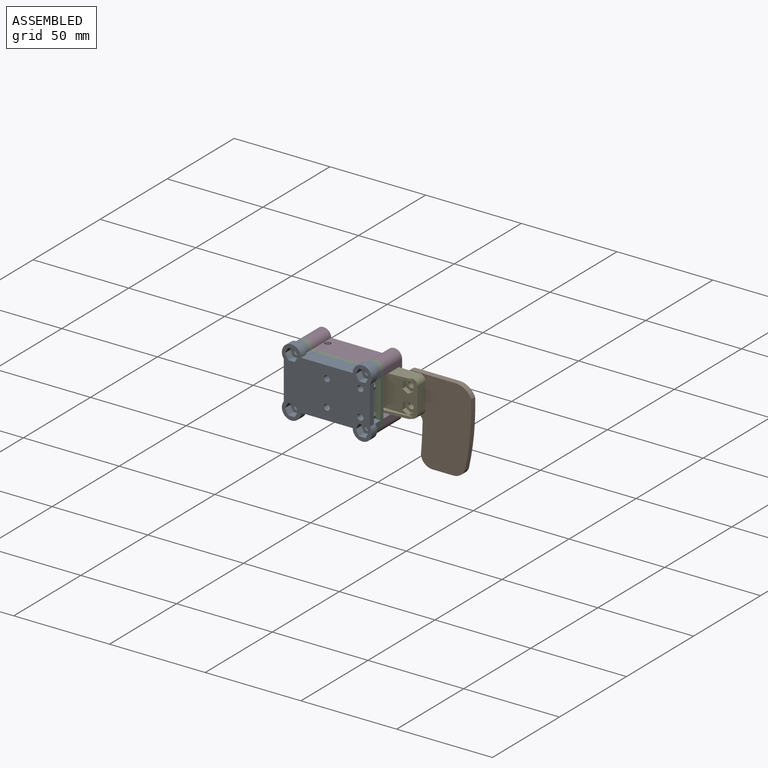
[diagram: assembled view]
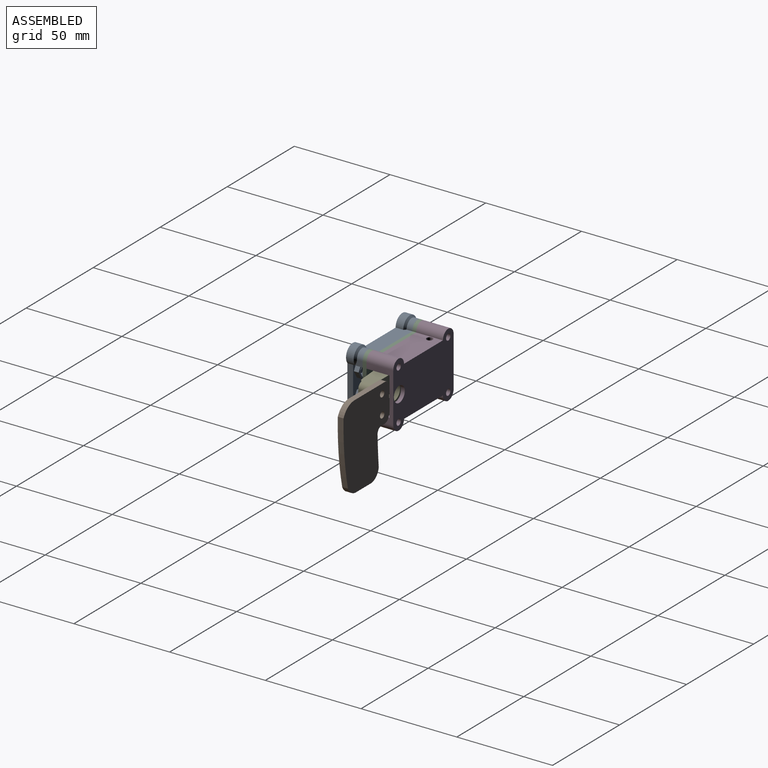
[diagram: assembled view, second angle]
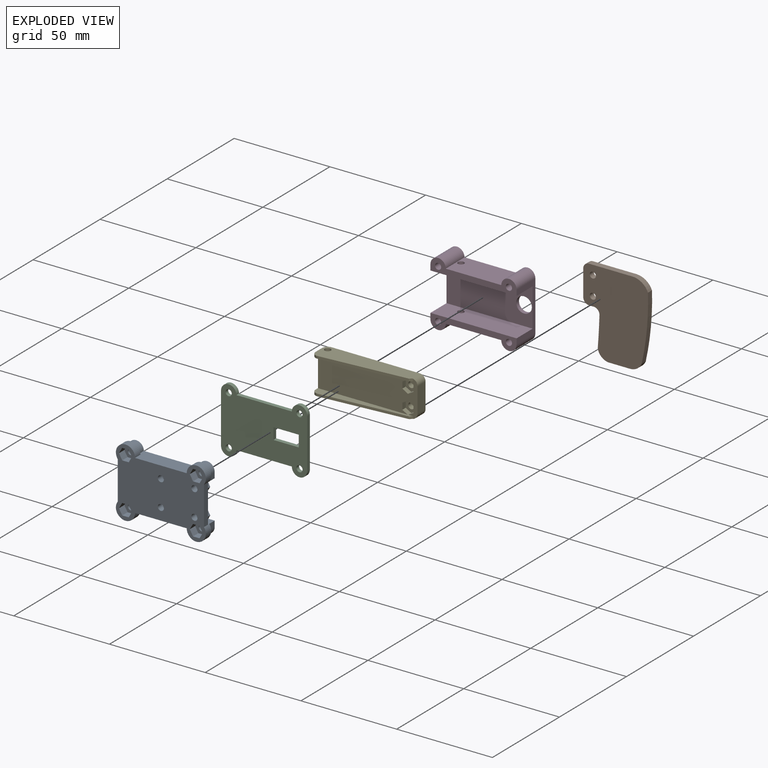
[diagram: exploded view]
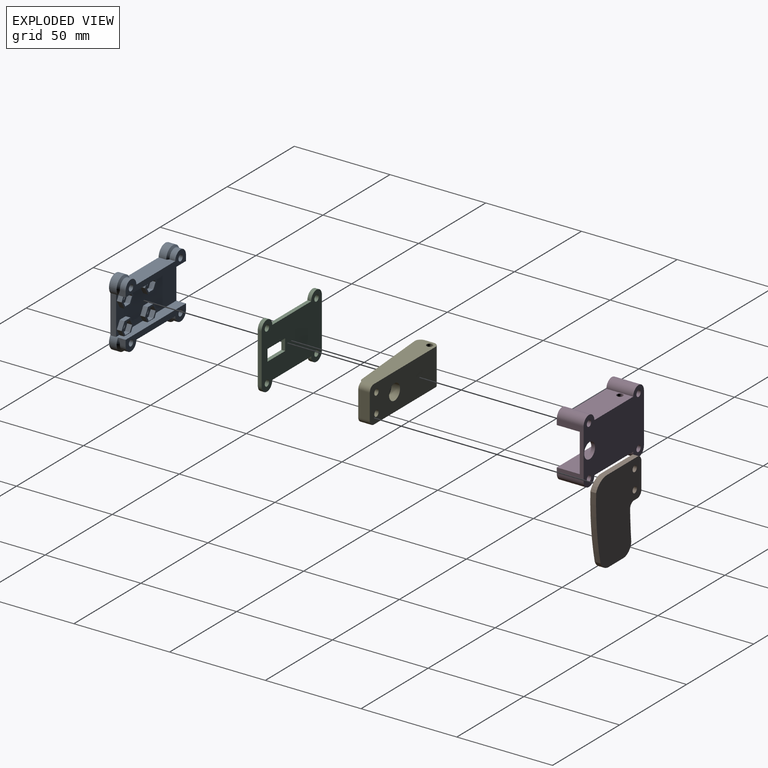
[diagram: exploded view, second angle]
ASSEMBLY  parts=5 mates=4
PART A: 114 faces, bbox 47x8x36 mm
  f0: cylinder r=1.6mm len=4mm, axis (0,-1,0), area 40.3mm2, adj f23,f113
  f1: cylinder r=1.6mm len=4mm, axis (0,-1,0), area 40.3mm2, adj f23,f106
  f2: cylinder r=1.6mm len=4mm, axis (0,-1,0), area 40.3mm2, adj f29,f99
  f3: cylinder r=1.6mm len=4mm, axis (0,-1,0), area 40.3mm2, adj f29,f92
  f4: plane 45x20.01mm, normal (0,1,0), area 706.6mm2, adj f7,f11,f18,f24,f35,f36,f37,f38
  f5: plane 28.99x8mm, normal (0,0,-1), area 223mm2, adj f6,f12,f13,f14,f17,f20,f21,f23
  f6: cylinder r=5mm len=10mm, axis (0,-1,0), area 75.7mm2, adj f5,f7,f13,f14,f18
  f7: plane 20.01x3mm, normal (1,0,0), area 60mm2, adj f4,f6,f8,f13
  f8: cylinder r=5mm len=10mm, axis (0,-1,0), area 75.7mm2, adj f7,f9,f13,f15,f24
  f9: plane 28.99x8mm, normal (0,0,1), area 223mm2, adj f8,f10,f13,f15,f16,f25,f28,f29
  f10: cylinder r=5mm len=10mm, axis (0,-1,0), area 75.7mm2, adj f9,f11,f13,f16,f24
  f11: plane 20.01x3mm, normal (-1,0,0), area 60mm2, adj f4,f10,f12,f13
  f12: cylinder r=5mm len=10mm, axis (0,-1,0), area 75.7mm2, adj f5,f11,f13,f17,f18
  f13: plane 47x36mm, normal (0,-1,0), area 1182.9mm2, adj f5,f6,f7,f8,f9,f10,f11,f12
  f14: cone r=5mm half-angle=45deg, axis (0,-1,0), area 22.8mm2, adj f5,f6,f21,f22
  f15: cone r=5mm half-angle=45deg, axis (0,-1,0), area 22.8mm2, adj f8,f9,f27,f28
  f16: cone r=5mm half-angle=45deg, axis (0,-1,0), area 22.8mm2, adj f9,f10,f25,f26
  f17: cone r=5mm half-angle=45deg, axis (0,-1,0), area 22.8mm2, adj f5,f12,f19,f20
  f18: plane 45x5mm, normal (0,0,1), area 199.2mm2, adj f4,f6,f12,f19,f22,f23,f38,f39
  f19: plane 4x3mm, normal (-1,0,0), area 10mm2, adj f17,f18,f20,f23
  f20: cylinder r=4mm len=8mm, axis (0,-1,0), area 37.7mm2, adj f5,f17,f19,f23
  f21: cylinder r=4mm len=8mm, axis (0,-1,0), area 37.7mm2, adj f5,f14,f22,f23
  f22: plane 4x3mm, normal (1,0,0), area 10mm2, adj f14,f18,f21,f23
  f23: plane 45x7mm, normal (0,1,0), area 169mm2, adj f0,f1,f5,f18,f19,f20,f21,f22
  f24: plane 45x5mm, normal (0,0,-1), area 199.2mm2, adj f4,f8,f10,f26,f27,f29,f57,f58
  f25: cylinder r=4mm len=8mm, axis (0,-1,0), area 37.7mm2, adj f9,f16,f26,f29
  f26: plane 4x3mm, normal (-1,0,0), area 10mm2, adj f16,f24,f25,f29
  f27: plane 4x3mm, normal (1,0,0), area 10mm2, adj f15,f24,f28,f29
  f28: cylinder r=4mm len=8mm, axis (0,-1,0), area 37.7mm2, adj f9,f15,f27,f29
  f29: plane 45x7mm, normal (0,1,0), area 169mm2, adj f2,f3,f9,f24,f25,f26,f27,f28
  f30: plane 2.94x2.5mm, normal (0.87,0,-0.5), area 8.5mm2, adj f31,f40,f41,f42
  f31: plane 3.4x2.5mm, normal (0,0,-1), area 8.5mm2, adj f30,f32,f41,f42
  f32: plane 2.95x2.5mm, normal (-0.87,0,-0.5), area 8.5mm2, adj f31,f33,f41,f42
  f33: plane 2.94x2.5mm, normal (-0.87,0,0.5), area 8.5mm2, adj f32,f34,f41,f42
  f34: plane 3.4x2.5mm, normal (0,0,1), area 8.5mm2, adj f33,f40,f41,f42
  f35: plane 3.87x2.5mm, normal (0.87,0,0.5), area 11.1mm2, adj f4,f36,f39,f41
  f36: plane 4.46x2.5mm, normal (0,0,1), area 11.1mm2, adj f4,f35,f37,f41
  f37: plane 3.85x2.5mm, normal (-0.86,0,0.5), area 11.1mm2, adj f4,f36,f38,f41
  f38: plane 3.24x2.5mm, normal (-0.87,0,-0.5), area 9.3mm2, adj f4,f18,f37,f41
  f39: plane 3.2x2.5mm, normal (0.86,0,-0.5), area 9.3mm2, adj f4,f18,f35,f41
  f40: plane 2.95x2.5mm, normal (0.87,0,0.5), area 8.5mm2, adj f30,f34,f41,f42
  f41: plane 8.92x7.09mm, normal (0,1,0), area 18.5mm2, adj f18,f30,f31,f32,f33,f34,f35,f36
  f42: plane 6.8x5.89mm, normal (0,1,0), area 22mm2, adj f30,f31,f32,f33,f34,f40,f85
  f43: plane 2.94x2.5mm, normal (0.87,0,-0.5), area 8.5mm2, adj f44,f53,f54,f55
  f44: plane 3.4x2.5mm, normal (0,0,-1), area 8.5mm2, adj f43,f45,f54,f55
  f45: plane 2.94x2.5mm, normal (-0.87,0,-0.5), area 8.5mm2, adj f44,f46,f54,f55
  f46: plane 2.94x2.5mm, normal (-0.87,0,0.5), area 8.5mm2, adj f45,f47,f54,f55
  f47: plane 3.4x2.5mm, normal (0,0,1), area 8.5mm2, adj f46,f53,f54,f55
  f48: plane 3.25x2.5mm, normal (0.87,0,-0.5), area 9.4mm2, adj f4,f18,f49,f54
  f49: plane 3.84x2.5mm, normal (0.86,0,0.5), area 11.1mm2, adj f4,f48,f50,f54
  f50: plane 4.44x2.5mm, normal (0,0,1), area 11.1mm2, adj f4,f49,f51,f54
  f51: plane 3.85x2.5mm, normal (-0.87,0,0.5), area 11.1mm2, adj f4,f50,f52,f54
  f52: plane 3.23x2.5mm, normal (-0.86,0,-0.5), area 9.3mm2, adj f4,f18,f51,f54
  f53: plane 2.94x2.5mm, normal (0.87,0,0.5), area 8.5mm2, adj f43,f47,f54,f55
  f54: plane 8.87x7.09mm, normal (0,1,0), area 18.2mm2, adj f18,f43,f44,f45,f46,f47,f48,f49
  f55: plane 6.8x5.89mm, normal (0,1,0), area 22mm2, adj f43,f44,f45,f46,f47,f53,f84
  f56: plane 3.87x2.5mm, normal (0.87,0,-0.5), area 11.1mm2, adj f4,f57,f66,f67
  f57: plane 3.2x2.5mm, normal (0.86,0,0.5), area 9.3mm2, adj f4,f24,f56,f67
  f58: plane 3.24x2.5mm, normal (-0.87,0,0.5), area 9.3mm2, adj f4,f24,f59,f67
  f59: plane 3.85x2.5mm, normal (-0.86,0,-0.5), area 11.1mm2, adj f4,f58,f66,f67
  f60: plane 2.94x2.5mm, normal (0.87,0,0.5), area 8.5mm2, adj f61,f65,f67,f68
  f61: plane 2.95x2.5mm, normal (0.87,0,-0.5), area 8.5mm2, adj f60,f62,f67,f68
  f62: plane 3.4x2.5mm, normal (0,0,-1), area 8.5mm2, adj f61,f63,f67,f68
  f63: plane 2.94x2.5mm, normal (-0.87,0,-0.5), area 8.5mm2, adj f62,f64,f67,f68
  f64: plane 2.95x2.5mm, normal (-0.87,0,0.5), area 8.5mm2, adj f63,f65,f67,f68
  f65: plane 3.4x2.5mm, normal (0,0,1), area 8.5mm2, adj f60,f64,f67,f68
  f66: plane 4.46x2.5mm, normal (0,0,-1), area 11.1mm2, adj f4,f56,f59,f67
  f67: plane 8.92x7.09mm, normal (0,1,0), area 18.5mm2, adj f24,f56,f57,f58,f59,f60,f61,f62
  f68: plane 6.8x5.89mm, normal (0,1,0), area 22mm2, adj f60,f61,f62,f63,f64,f65,f83
  f69: plane 3.84x2.5mm, normal (0.86,0,-0.5), area 11.1mm2, adj f4,f70,f79,f80
  f70: plane 3.25x2.5mm, normal (0.87,0,0.5), area 9.4mm2, adj f4,f24,f69,f80
  f71: plane 3.23x2.5mm, normal (-0.86,0,0.5), area 9.3mm2, adj f4,f24,f72,f80
  f72: plane 3.85x2.5mm, normal (-0.87,0,-0.5), area 11.1mm2, adj f4,f71,f79,f80
  f73: plane 2.94x2.5mm, normal (0.87,0,-0.5), area 8.5mm2, adj f74,f78,f80,f81
  f74: plane 3.4x2.5mm, normal (0,0,-1), area 8.5mm2, adj f73,f75,f80,f81
  f75: plane 2.94x2.5mm, normal (-0.87,0,-0.5), area 8.5mm2, adj f74,f76,f80,f81
  f76: plane 2.94x2.5mm, normal (-0.87,0,0.5), area 8.5mm2, adj f75,f77,f80,f81
  f77: plane 3.4x2.5mm, normal (0,0,1), area 8.5mm2, adj f76,f78,f80,f81
  f78: plane 2.94x2.5mm, normal (0.87,0,0.5), area 8.5mm2, adj f73,f77,f80,f81
  f79: plane 4.44x2.5mm, normal (0,0,-1), area 11.1mm2, adj f4,f69,f72,f80
  f80: plane 8.87x7.09mm, normal (0,1,0), area 18.2mm2, adj f24,f69,f70,f71,f72,f73,f74,f75
  f81: plane 6.8x5.89mm, normal (0,1,0), area 22mm2, adj f73,f74,f75,f76,f77,f78,f82
  f82: cylinder r=1.6mm len=3.2mm, axis (0,-1,0), area 30.2mm2, adj f13,f81
  f83: cylinder r=1.6mm len=3.2mm, axis (0,-1,0), area 30.2mm2, adj f13,f68
  f84: cylinder r=1.6mm len=3.2mm, axis (0,-1,0), area 30.2mm2, adj f13,f55
  f85: cylinder r=1.6mm len=3.2mm, axis (0,-1,0), area 30.2mm2, adj f13,f42
  f86: plane 4x2.95mm, normal (-0.87,0,0.5), area 13.6mm2, adj f13,f87,f91,f92
  f87: plane 4x2.94mm, normal (-0.86,0,-0.5), area 13.6mm2, adj f13,f86,f88,f92
  f88: plane 4x3.4mm, normal (0.01,0,-1), area 13.6mm2, adj f13,f87,f89,f92
  f89: plane 4x2.95mm, normal (0.87,0,-0.5), area 13.6mm2, adj f13,f88,f90,f92
  f90: plane 4x2.94mm, normal (0.86,0,0.5), area 13.6mm2, adj f13,f89,f91,f92
  f91: plane 4x3.4mm, normal (-0.01,0,1), area 13.6mm2, adj f13,f86,f90,f92
  f92: plane 6.8x5.91mm, normal (0,-1,0), area 21.9mm2, adj f3,f86,f87,f88,f89,f90,f91
  f93: plane 4x2.94mm, normal (0.86,0,0.5), area 13.6mm2, adj f13,f94,f98,f99
  f94: plane 4x3.4mm, normal (0,0,1), area 13.6mm2, adj f13,f93,f95,f99
  f95: plane 4x2.95mm, normal (-0.87,0,0.5), area 13.6mm2, adj f13,f94,f96,f99
  f96: plane 4x2.94mm, normal (-0.86,0,-0.5), area 13.6mm2, adj f13,f95,f97,f99
  f97: plane 4x3.4mm, normal (0,0,-1), area 13.6mm2, adj f13,f96,f98,f99
  f98: plane 4x2.95mm, normal (0.87,0,-0.5), area 13.6mm2, adj f13,f93,f97,f99
  f99: plane 6.8x5.9mm, normal (0,-1,0), area 21.9mm2, adj f2,f93,f94,f95,f96,f97,f98
  f100: plane 4x3.4mm, normal (0,0,-1), area 13.6mm2, adj f13,f101,f105,f106
  f101: plane 4x2.95mm, normal (0.87,0,-0.5), area 13.6mm2, adj f13,f100,f102,f106
  f102: plane 4x2.94mm, normal (0.87,0,0.5), area 13.6mm2, adj f13,f101,f103,f106
  f103: plane 4x3.4mm, normal (0,0,1), area 13.6mm2, adj f13,f102,f104,f106
  f104: plane 4x2.95mm, normal (-0.87,0,0.5), area 13.6mm2, adj f13,f103,f105,f106
  f105: plane 4x2.94mm, normal (-0.87,0,-0.5), area 13.6mm2, adj f13,f100,f104,f106
  f106: plane 6.8x5.89mm, normal (0,-1,0), area 21.9mm2, adj f1,f100,f101,f102,f103,f104,f105
  f107: plane 4x3.4mm, normal (0,0,-1), area 13.6mm2, adj f13,f108,f112,f113
  f108: plane 4x2.95mm, normal (0.87,0,-0.5), area 13.6mm2, adj f13,f107,f109,f113
  f109: plane 4x2.94mm, normal (0.87,0,0.5), area 13.6mm2, adj f13,f108,f110,f113
  f110: plane 4x3.4mm, normal (0,0,1), area 13.6mm2, adj f13,f109,f111,f113
  f111: plane 4x2.95mm, normal (-0.87,0,0.5), area 13.6mm2, adj f13,f110,f112,f113
  f112: plane 4x2.94mm, normal (-0.87,0,-0.5), area 13.6mm2, adj f13,f107,f111,f113
  f113: plane 6.8x5.89mm, normal (0,-1,0), area 21.9mm2, adj f0,f107,f108,f109,f110,f111,f112
PART B: 16 faces, bbox 33.9x3x43.9 mm
  f0: plane 22.51x3mm, normal (0,0,1), area 67.5mm2, adj f1,f13,f14,f15
  f1: cylinder r=3.02mm len=3.15mm, axis (0,1,0), area 14.9mm2, adj f0,f2,f14,f15
  f2: plane 13.45x3mm, normal (-1,0,0), area 40.3mm2, adj f1,f3,f14,f15
  f3: cylinder r=3.13mm len=3.15mm, axis (0,1,0), area 14.8mm2, adj f2,f4,f14,f15
  f4: plane 3x2.29mm, normal (0.01,0,-1), area 6.9mm2, adj f3,f5,f14,f15
  f5: cylinder r=3.01mm len=3.15mm, axis (0,1,0), area 14.7mm2, adj f4,f6,f14,f15
  f6: cylinder r=295.77mm len=15.84mm, axis (0,1,0), area 47.6mm2, adj f5,f7,f14,f15
  f7: cylinder r=6.12mm len=5.83mm, axis (0,1,0), area 25.6mm2, adj f6,f8,f14,f15
  f8: plane 11.01x3mm, normal (0,0,-1), area 33mm2, adj f7,f9,f14,f15
  f9: cylinder r=6.71mm len=6.13mm, axis (0,1,0), area 23.2mm2, adj f8,f10,f14,f15
  f10: cylinder r=139.49mm len=34.43mm, axis (0,1,0), area 104mm2, adj f9,f13,f14,f15
  f11: cylinder r=1.6mm len=3.2mm, axis (0,1,0), area 30.2mm2, adj f14,f15
  f12: cylinder r=1.6mm len=3.2mm, axis (0,1,0), area 30.2mm2, adj f14,f15
  f13: cylinder r=8.81mm len=8.15mm, axis (0,1,0), area 31.3mm2, adj f0,f10,f14,f15
  f14: plane 43.9x33.88mm, normal (0,-1,0), area 1200.3mm2, adj f0,f1,f2,f3,f4,f5,f6,f7
  f15: plane 43.9x33.88mm, normal (0,1,0), area 1200.3mm2, adj f0,f1,f2,f3,f4,f5,f6,f7
PART C: 18 faces, bbox 45x34x2 mm
  f0: plane 28.99x2mm, normal (0,1,0), area 58mm2, adj f1,f13,f16,f17
  f1: cylinder r=4mm len=8mm, axis (0,0,-1), area 25.1mm2, adj f0,f2,f16,f17
  f2: plane 26x2mm, normal (-1,0,0), area 52mm2, adj f1,f3,f16,f17
  f3: cylinder r=4mm len=8mm, axis (0,0,-1), area 25.1mm2, adj f2,f4,f16,f17
  f4: plane 28.99x2mm, normal (0,-1,0), area 58mm2, adj f3,f5,f16,f17
  f5: cylinder r=4mm len=8mm, axis (0,0,-1), area 25.1mm2, adj f4,f6,f16,f17
  f6: plane 26x2mm, normal (1,0,0), area 52mm2, adj f5,f13,f16,f17
  f7: plane 6x2mm, normal (1,0,0), area 12mm2, adj f8,f14,f16,f17
  f8: plane 13.2x2mm, normal (0,-1,0), area 26.4mm2, adj f7,f9,f16,f17
  f9: plane 6x2mm, normal (-1,0,0), area 12mm2, adj f8,f14,f16,f17
  f10: cylinder r=1.6mm len=3.21mm, axis (0,0,-1), area 20.2mm2, adj f16,f17
  f11: cylinder r=1.6mm len=3.21mm, axis (0,0,-1), area 20.2mm2, adj f16,f17
  f12: cylinder r=1.6mm len=3.21mm, axis (0,0,-1), area 20.2mm2, adj f16,f17
  f13: cylinder r=4mm len=8mm, axis (0,0,-1), area 25.1mm2, adj f0,f6,f16,f17
  f14: plane 13.2x2mm, normal (0,1,0), area 26.4mm2, adj f7,f9,f16,f17
  f15: cylinder r=1.6mm len=3.21mm, axis (0,0,-1), area 20.2mm2, adj f16,f17
  f16: plane 45x34mm, normal (0,0,1), area 1159mm2, adj f0,f1,f2,f3,f4,f5,f6,f7
  f17: plane 45x34mm, normal (0,0,-1), area 1159mm2, adj f0,f1,f2,f3,f4,f5,f6,f7
PART D: 21 faces, bbox 45x34x14 mm
  f0: plane 45x20mm, normal (0,0,-1), area 848.3mm2, adj f2,f6,f13,f15,f17
  f1: cylinder r=4mm len=14mm, axis (0,0,-1), area 176mm2, adj f2,f12,f14,f16
  f2: plane 26x14mm, normal (-1,0,0), area 124mm2, adj f0,f1,f3,f14,f15,f16,f17,f18
  f3: cylinder r=4mm len=14mm, axis (0,0,-1), area 176mm2, adj f2,f4,f14,f18
  f4: plane 28.99x14mm, normal (0,-1,0), area 397.9mm2, adj f3,f5,f14,f18,f19
  f5: cylinder r=4mm len=14mm, axis (0,0,-1), area 176mm2, adj f4,f6,f14,f18
  f6: plane 26x14mm, normal (1,0,0), area 124mm2, adj f0,f5,f7,f14,f15,f16,f17,f18
  f7: cylinder r=4mm len=14mm, axis (0,0,-1), area 176mm2, adj f6,f12,f14,f16
  f8: cylinder r=1.6mm len=14mm, axis (0,0,-1), area 141.1mm2, adj f14,f18
  f9: cylinder r=1.6mm len=14mm, axis (0,0,-1), area 141.1mm2, adj f14,f18
  f10: cylinder r=1.6mm len=14mm, axis (0,0,-1), area 141.1mm2, adj f14,f16
  f11: cylinder r=1.6mm len=14mm, axis (0,0,-1), area 141.1mm2, adj f14,f16
  f12: plane 28.99x14mm, normal (0,1,0), area 397.9mm2, adj f1,f7,f14,f16,f20
  f13: cylinder r=4.06mm len=8.12mm, axis (0,0,-1), area 51mm2, adj f0,f14
  f14: plane 45x34.01mm, normal (0,0,1), area 1186.5mm2, adj f1,f2,f3,f4,f5,f6,f7,f8
  f15: plane 45x12mm, normal (0,-1,0), area 532mm2, adj f0,f2,f6,f16,f20
  f16: plane 45x7mm, normal (0,0,-1), area 169.2mm2, adj f1,f2,f6,f7,f10,f11,f12,f15
  f17: plane 45x12mm, normal (0,1,0), area 532mm2, adj f0,f2,f6,f18,f19
  f18: plane 45x7mm, normal (0,0,-1), area 169.2mm2, adj f2,f3,f4,f5,f6,f8,f9,f17
  f19: cylinder r=1.6mm len=3.2mm, axis (0,-1,0), area 30.1mm2, adj f4,f17
  f20: cylinder r=1.6mm len=3.2mm, axis (0,-1,0), area 30.1mm2, adj f12,f15
PART E: 40 faces, bbox 52x19.1x10.7 mm
  f0: plane 2.55x1.15mm, normal (0,1,0), area 1.9mm2, adj f3,f4,f5,f6,f31
  f1: plane 46.84x4.75mm, normal (0,-1,0), area 142.3mm2, adj f3,f8,f16,f17,f21
  f2: plane 13.1x6mm, normal (-1,0,0), area 78.6mm2, adj f3,f10,f19,f20
  f3: plane 52x18.91mm, normal (0,0,-1), area 801.8mm2, adj f0,f1,f2,f4,f8,f11,f14,f18
  f4: cylinder r=0.95mm len=1.3mm, axis (0,-1,0), area 1.3mm2, adj f0,f3,f5,f12,f20
  f5: cylinder r=1mm len=1.3mm, axis (0,-1,0), area 1.3mm2, adj f0,f4,f6,f12
  f6: plane 44.84x3.66mm, normal (-0.08,0,-1), area 58.5mm2, adj f0,f5,f7,f11,f12,f31,f32
  f7: cylinder r=3mm len=3.24mm, axis (0,-1,0), area 6.4mm2, adj f6,f8,f11,f12
  f8: plane 19.1x4.74mm, normal (1,0,0), area 61.8mm2, adj f1,f3,f7,f9,f11,f12,f13,f17
  f9: cylinder r=3mm len=19.1mm, axis (0,-1,0), area 90mm2, adj f8,f10,f12,f13
  f10: plane 49x19.1mm, normal (0,0,1), area 863.1mm2, adj f2,f9,f12,f13,f19,f20,f35,f36
  f11: plane 46.82x4.75mm, normal (0,1,0), area 142.3mm2, adj f3,f6,f7,f8,f32
  f12: plane 49x10.75mm, normal (0,-1,0), area 428.6mm2, adj f4,f5,f6,f7,f8,f9,f10,f20
  f13: plane 49x10.75mm, normal (0,1,0), area 428.6mm2, adj f8,f9,f10,f14,f15,f16,f17,f19
  f14: cylinder r=0.95mm len=1.3mm, axis (0,-1,0), area 1.3mm2, adj f3,f13,f15,f18,f19
  f15: cylinder r=1mm len=1.3mm, axis (0,-1,0), area 1.3mm2, adj f13,f14,f16,f18
  f16: plane 44.84x3.66mm, normal (-0.08,0,-1), area 58.5mm2, adj f1,f13,f15,f17,f18,f21,f22
  f17: cylinder r=3mm len=3.24mm, axis (0,-1,0), area 6.4mm2, adj f1,f8,f13,f16
  f18: plane 2.57x1.15mm, normal (0,-1,0), area 1.9mm2, adj f3,f14,f15,f16,f22
  f19: cylinder r=3mm len=6.36mm, axis (0,0,1), area 28.4mm2, adj f2,f3,f10,f13,f14
  f20: cylinder r=3mm len=6.36mm, axis (0,0,-1), area 28.4mm2, adj f2,f3,f4,f10,f12
  f21: plane 3.68x2.9mm, normal (-0.5,-0.87,0), area 8.6mm2, adj f1,f3,f16,f22,f26,f27
  f22: plane 3.66x2.9mm, normal (0.5,-0.87,0), area 8.6mm2, adj f3,f16,f18,f21,f23,f27
  f23: plane 3.35x2.5mm, normal (1,0,0), area 8.4mm2, adj f3,f22,f24,f27
  f24: plane 2.9x2.5mm, normal (0.5,0.87,0), area 8.4mm2, adj f3,f23,f25,f27
  f25: plane 2.9x2.5mm, normal (-0.5,0.87,0), area 8.4mm2, adj f3,f24,f26,f27
  f26: plane 3.35x2.5mm, normal (-1,0,0), area 8.4mm2, adj f3,f21,f25,f27
  f27: plane 6.7x5.8mm, normal (0,0,-1), area 21.1mm2, adj f21,f22,f23,f24,f25,f26,f36
  f28: plane 2.9x2.5mm, normal (-0.5,-0.87,0), area 8.4mm2, adj f3,f29,f33,f34
  f29: plane 2.9x2.5mm, normal (0.5,-0.87,0), area 8.4mm2, adj f3,f28,f30,f34
  f30: plane 3.35x2.5mm, normal (1,0,0), area 8.4mm2, adj f3,f29,f31,f34
  f31: plane 3.66x2.9mm, normal (0.5,0.87,0), area 8.6mm2, adj f0,f3,f6,f30,f32,f34
  f32: plane 3.68x2.9mm, normal (-0.5,0.87,0), area 8.6mm2, adj f3,f6,f11,f31,f33,f34
  f33: plane 3.35x2.5mm, normal (-1,0,0), area 8.4mm2, adj f3,f28,f32,f34
  f34: plane 6.7x5.8mm, normal (0,0,-1), area 21.1mm2, adj f28,f29,f30,f31,f32,f33,f35
  f35: cylinder r=1.6mm len=3.5mm, axis (0,0,1), area 35.2mm2, adj f10,f34
  f36: cylinder r=1.6mm len=3.5mm, axis (0,0,1), area 35.2mm2, adj f10,f27
  f37: cylinder r=4.1mm len=8.2mm, axis (0,0,1), area 115.9mm2, adj f10,f38
  f38: plane 8.2x8.2mm, normal (0,0,1), area 52.8mm2, adj f37
  f39: cylinder r=1.6mm len=19.1mm, axis (0,-1,0), area 192mm2, adj f12,f13
PLACE A at identity
PLACE B t=(49.99,24.5,-36.4)mm
PLACE C rot(axis=(0,0.71,0.71),180deg) t=(26.88,8,18.67)mm
PLACE D rot(axis=(0,0.71,0.71),180deg) t=(27.85,10,18.55)mm
PLACE E rot(axis=(0,0.71,0.71),180deg) t=(59.98,10.75,8.69)mm
MATE fastened D.f1 <-> C.f1  axis (0,-1,0) through (41.98,10,30.99)mm
MATE fastened B.f12 <-> E.f35  axis (0,-1,0) through (54.99,21.5,13.43)mm
MATE fastened E.f9 <-> D.f19  axis (0,0,1) through (10.99,18.5,27.99)mm
MATE fastened C.f3 <-> A.f1  axis (0,-1,0) through (41.98,8,4.99)mm
